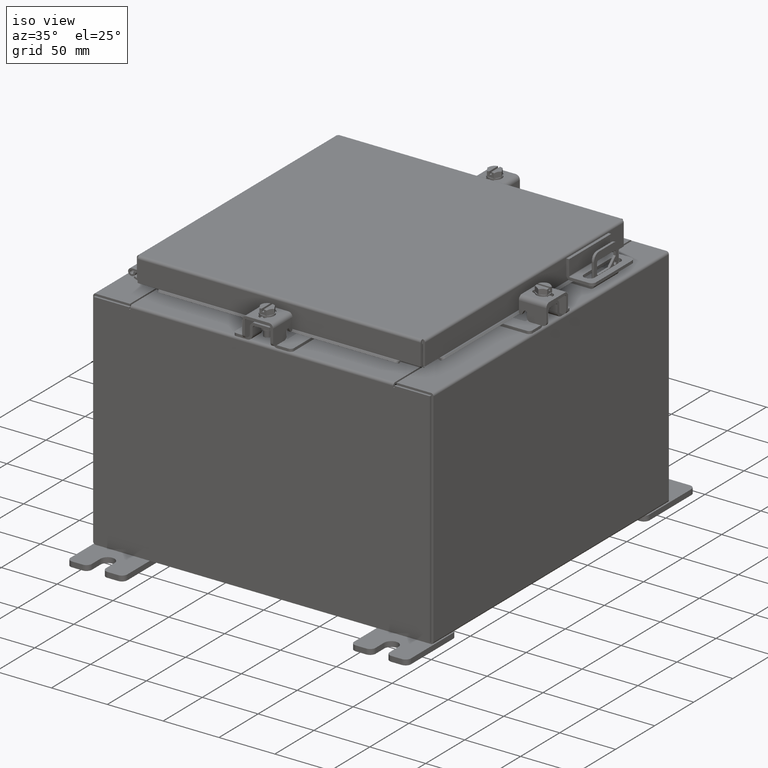
[diagram: clean part render]
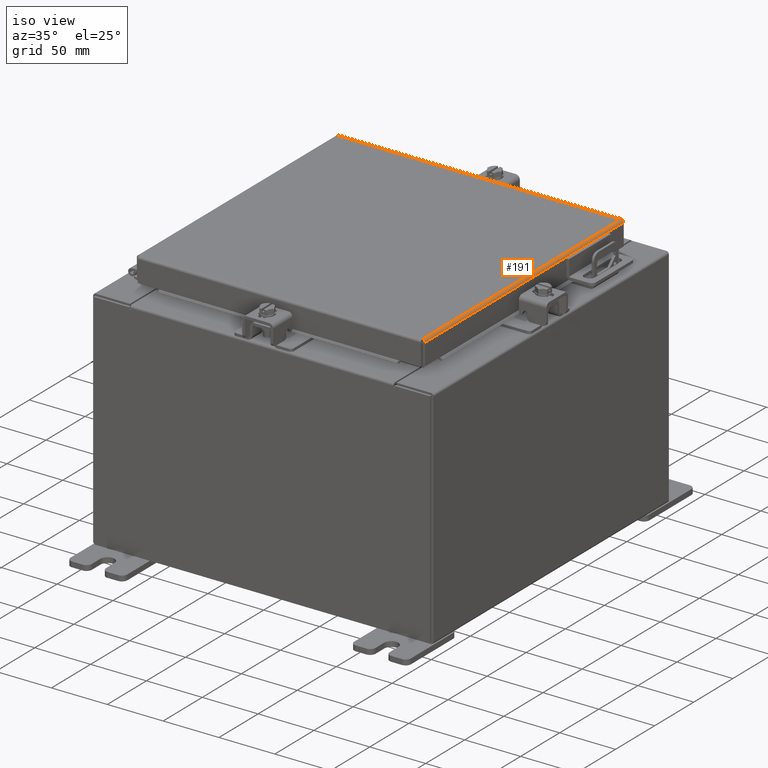
[diagram: same view with one face highlighted and labeled with its STEP entity id]
A machine part, iso view. The second image highlights one B-rep face of the part: STEP entity #191.
In plain terms, the highlighted cylindrical surface (edge-blend (fillet) strip) has radius 2.2276 mm, axis along (-0, -1, -0).
Its self-contained STEP definition (entity closure, byte-faithful):
#191 = ADVANCED_FACE ( 'NONE', ( #11772 ), #5537, .T. ) ;
#584 = CARTESIAN_POINT ( 'NONE',  ( 5.013255289458308900, 5.006109644062709300, -0.002282596256188889100 ) ) ;
#800 = CARTESIAN_POINT ( 'NONE',  ( 5.077999999999998500, -5.005157864376270600, -0.08770000000000026400 ) ) ;
#1016 = DIRECTION ( 'NONE',  ( 1.000000000000000000, 0.0000000000000000000, 2.725618009642215600E-015 ) ) ;
#1293 = CARTESIAN_POINT ( 'NONE',  ( 5.013255289458308000, -5.006109644062713700, -0.002282596256188889100 ) ) ;
#1307 = VERTEX_POINT ( 'NONE', #5236 ) ;
#2268 = DIRECTION ( 'NONE',  ( -0.0000000000000000000, -1.000000000000000000, -0.0000000000000000000 ) ) ;
#2745 = ORIENTED_EDGE ( 'NONE', *, *, #18130, .F. ) ;
#2950 = CARTESIAN_POINT ( 'NONE',  ( 5.075717403743810000, -5.005348220313560900, -0.06474471054169118900 ) ) ;
#3724 = DIRECTION ( 'NONE',  ( 0.0000000000000000000, 1.000000000000000000, 0.0000000000000000000 ) ) ;
#3872 = CARTESIAN_POINT ( 'NONE',  ( 5.077999999999998500, 5.005157864376270600, -0.08770000000000026400 ) ) ;
#3890 = VERTEX_POINT ( 'NONE', #3872 ) ;
#4035 = CARTESIAN_POINT ( 'NONE',  ( 5.077999999999998500, 0.0000000000000000000, -0.08770000000000026400 ) ) ;
#4913 = VERTEX_POINT ( 'NONE', #800 ) ;
#5236 = CARTESIAN_POINT ( 'NONE',  ( 4.990299999999998600, -5.006300000000000400, 0.0000000000000000000 ) ) ;
#5320 = EDGE_CURVE ( 'NONE', #4913, #1307, #8220, .T. ) ;
#5327 = AXIS2_PLACEMENT_3D ( 'NONE', #9288, #2268, #1016 ) ;
#5537 = CYLINDRICAL_SURFACE ( 'NONE', #5327, 0.08770000000000026400 ) ;
#5810 = ORIENTED_EDGE ( 'NONE', *, *, #5320, .F. ) ;
#5893 = EDGE_CURVE ( 'NONE', #6426, #3890, #8937, .T. ) ;
#6141 = VECTOR ( 'NONE', #3724, 39.37007874015748100 ) ;
#6426 = VERTEX_POINT ( 'NONE', #20927 ) ;
#6662 = EDGE_LOOP ( 'NONE', ( #2745, #5810, #19081, #20333 ) ) ;
#6902 = VECTOR ( 'NONE', #16658, 39.37007874015748100 ) ;
#7697 = CARTESIAN_POINT ( 'NONE',  ( 5.044195747341798400, -5.005824110156778400, -0.01756921792167973100 ) ) ;
#8220 = B_SPLINE_CURVE_WITH_KNOTS ( 'NONE', 3,
 ( #15074, #12959, #2950, #17704, #9835, #7697, #22386, #1293, #11995, #21911 ),
 .UNSPECIFIED., .F., .F.,
 ( 4, 2, 2, 2, 4 ),
 ( 0.0000000000000000000, 0.2500000000000000000, 0.5000000000000000000, 0.7500000000000000000, 1.000000000000000000 ),
 .UNSPECIFIED. ) ;
#8937 = B_SPLINE_CURVE_WITH_KNOTS ( 'NONE', 3,
 ( #9437, #14537, #584, #10919, #22999, #17905, #13104, #22590, #13286, #20595 ),
 .UNSPECIFIED., .F., .F.,
 ( 4, 2, 2, 2, 4 ),
 ( 0.0000000000000000000, 0.2500000000000000000, 0.5000000000000000000, 0.7500000000000000000, 1.000000000000000000 ),
 .UNSPECIFIED. ) ;
#9288 = CARTESIAN_POINT ( 'NONE',  ( 4.990299999999998600, -5.006300000000000400, -0.08770000000000026400 ) ) ;
#9437 = CARTESIAN_POINT ( 'NONE',  ( 4.990299999999998600, 5.006299999999998600, 0.0000000000000000000 ) ) ;
#9835 = CARTESIAN_POINT ( 'NONE',  ( 5.060430782078319600, -5.005633754219492600, -0.03380425265820005700 ) ) ;
#10919 = CARTESIAN_POINT ( 'NONE',  ( 5.034467384578523900, 5.005919288125420900, -0.01106893374133172600 ) ) ;
#11772 = FACE_OUTER_BOUND ( 'NONE', #6662, .T. ) ;
#11995 = CARTESIAN_POINT ( 'NONE',  ( 5.001779903154991700, -5.006204822031358000, -1.695399804661757400E-016 ) ) ;
#12959 = CARTESIAN_POINT ( 'NONE',  ( 5.077999999999997600, -5.005253042344916600, -0.07622009684500732900 ) ) ;
#13104 = CARTESIAN_POINT ( 'NONE',  ( 5.066931066258666400, 5.005538576250847500, -0.04353261542147220100 ) ) ;
#13286 = CARTESIAN_POINT ( 'NONE',  ( 5.077999999999998500, 5.005253042344914000, -0.07622009684500735700 ) ) ;
#14537 = CARTESIAN_POINT ( 'NONE',  ( 5.001779903154991700, 5.006204822031353500, -1.698734580044647500E-016 ) ) ;
#14578 = EDGE_CURVE ( 'NONE', #3890, #4913, #15848, .T. ) ;
#15074 = CARTESIAN_POINT ( 'NONE',  ( 5.077999999999998500, -5.005157864376270600, -0.08770000000000026400 ) ) ;
#15848 = LINE ( 'NONE', #4035, #6902 ) ;
#16449 = CARTESIAN_POINT ( 'NONE',  ( 4.990299999999998600, -5.006300000000000400, 0.0000000000000000000 ) ) ;
#16658 = DIRECTION ( 'NONE',  ( 0.0000000000000000000, -1.000000000000000000, 0.0000000000000000000 ) ) ;
#17704 = CARTESIAN_POINT ( 'NONE',  ( 5.066931066258666400, -5.005538576250846600, -0.04353261542147219400 ) ) ;
#17905 = CARTESIAN_POINT ( 'NONE',  ( 5.060430782078319600, 5.005633754219489100, -0.03380425265820005700 ) ) ;
#18130 = EDGE_CURVE ( 'NONE', #1307, #6426, #22881, .T. ) ;
#19081 = ORIENTED_EDGE ( 'NONE', *, *, #14578, .F. ) ;
#20333 = ORIENTED_EDGE ( 'NONE', *, *, #5893, .F. ) ;
#20595 = CARTESIAN_POINT ( 'NONE',  ( 5.077999999999998500, 5.005157864376270600, -0.08770000000000026400 ) ) ;
#20927 = CARTESIAN_POINT ( 'NONE',  ( 4.990299999999998600, 5.006299999999998600, 0.0000000000000000000 ) ) ;
#21911 = CARTESIAN_POINT ( 'NONE',  ( 4.990299999999998600, -5.006300000000000400, 0.0000000000000000000 ) ) ;
#22386 = CARTESIAN_POINT ( 'NONE',  ( 5.034467384578527500, -5.005919288125425300, -0.01106893374133172600 ) ) ;
#22590 = CARTESIAN_POINT ( 'NONE',  ( 5.075717403743810000, 5.005348220313559100, -0.06474471054169118900 ) ) ;
#22881 = LINE ( 'NONE', #16449, #6141 ) ;
#22999 = CARTESIAN_POINT ( 'NONE',  ( 5.044195747341798400, 5.005824110156778400, -0.01756921792167973100 ) ) ;